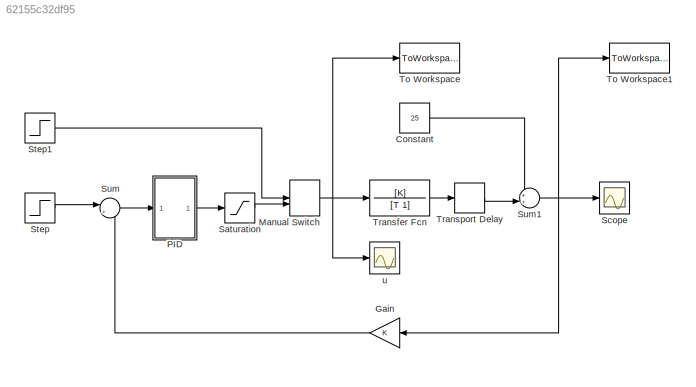
MODEL slx_62155c32df95
KIND model
BLOCK [Constant] Constant
  SampleTime = -1
  Value = 25
BLOCK [Gain] Gain
BLOCK [ManualSwitch] Manual Switch
  CurrentSetting = 0
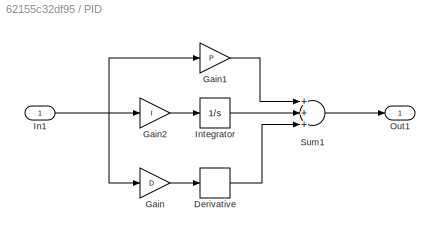
BLOCK [SubSystem] PID
  Ports = [1, 1]
  RequestExecContextInheritance = off
BLOCK [Derivative] PID/Derivative
BLOCK [Gain] PID/Gain
  Gain = D
BLOCK [Gain] PID/Gain1
  Gain = P
BLOCK [Gain] PID/Gain2
  Gain = I
BLOCK [Inport] PID/In1
  IconDisplay = Port number
BLOCK [Integrator] PID/Integrator
  Ports = [1, 1]
BLOCK [Outport] PID/Out1
  IconDisplay = Port number
BLOCK [Sum] PID/Sum1
  InputSameDT = off
  Inputs = +++
  OutDataTypeStr = Inherit: Inherit via internal rule
  Ports = [3, 1]
  SaturateOnIntegerOverflow = off
BLOCK [Saturate] Saturation
  InputPortMap = u0
  LowerLimit = 0
  Ports = [1, 1]
  UpperLimit = 100
BLOCK [Scope] Scope
  DataFormat = StructureWithTime
  Floating = off
  NumInputPorts = 1
  Ports = [1]
  SampleTime = 0
  ShowLegends = off
  ZoomMode = xonly
BLOCK [Step] Step
  After = 30
  SampleTime = 0.01
  Time = 0
BLOCK [Step] Step1
  After = 50
  Before = 10
  SampleTime = 0
  Time = ttotal/2
BLOCK [Sum] Sum
  IconShape = round
  InputSameDT = off
  Inputs = |+-
  OutDataTypeStr = Inherit: Inherit via internal rule
  Ports = [2, 1]
BLOCK [Sum] Sum1
  IconShape = round
  InputSameDT = off
  Inputs = ++|
  OutDataTypeStr = Inherit: Inherit via internal rule
  Ports = [2, 1]
BLOCK [ToWorkspace] To Workspace
  FixptAsFi = on
  MaxDataPoints = inf
  Ports = [1]
  SampleTime = -1
  Save2DSignal = 3-D array (concatenate along third dimension)
  SaveFormat = Structure With Time
  VariableName = u
BLOCK [ToWorkspace] To Workspace1
  FixptAsFi = on
  MaxDataPoints = inf
  Ports = [1]
  SampleTime = -1
  Save2DSignal = 3-D array (concatenate along third dimension)
  SaveFormat = Structure With Time
  VariableName = out
BLOCK [TransferFcn] Transfer Fcn
  Denominator = [T 1]
  Numerator = [K]
BLOCK [TransportDelay] Transport Delay
  DelayTime = L
  Ports = [1, 1]
BLOCK [Scope] u
  DataFormat = StructureWithTime
  Floating = off
  NumInputPorts = 1
  Ports = [1]
  SampleTime = 0
  SaveName = ScopeData1
  ShowLegends = off
LINE Constant:1 -> Sum1:1
LINE Gain:1 -> Sum:2
NET Manual Switch:1 -> To Workspace:1, Transfer Fcn:1, u:1
LINE PID/Derivative:1 -> PID/Sum1:3
LINE PID/Gain1:1 -> PID/Sum1:1
LINE PID/Gain2:1 -> PID/Integrator:1
LINE PID/Gain:1 -> PID/Derivative:1
NET PID/In1:1 -> PID/Gain1:1, PID/Gain2:1, PID/Gain:1
LINE PID/Integrator:1 -> PID/Sum1:2
LINE PID/Sum1:1 -> PID/Out1:1
LINE PID:1 -> Saturation:1
LINE Saturation:1 -> Manual Switch:2
LINE Step1:1 -> Manual Switch:1
LINE Step:1 -> Sum:1
NET Sum1:1 -> Gain:1, Scope:1, To Workspace1:1
LINE Sum:1 -> PID:1
LINE Transfer Fcn:1 -> Transport Delay:1
LINE Transport Delay:1 -> Sum1:2
note: NET lines group one-source signal fan-out (src -> all destinations, sorted); 1:1 wires keep LINE
